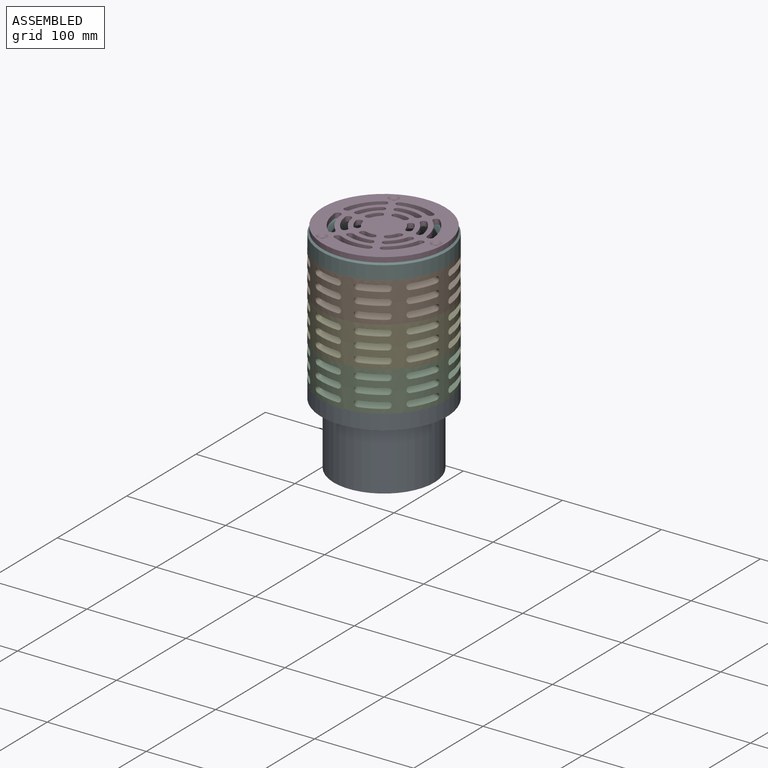
[diagram: assembled view]
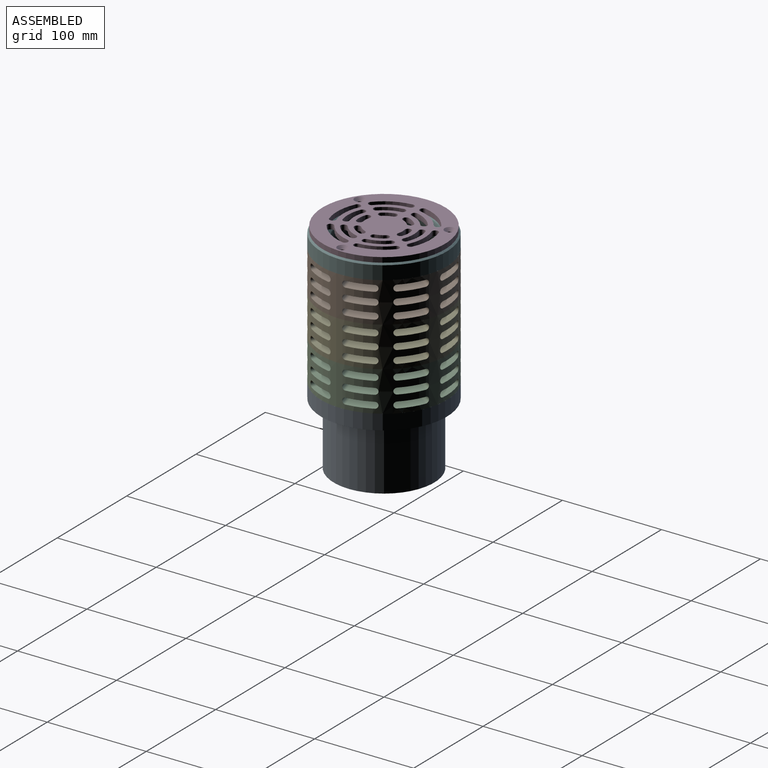
[diagram: assembled view, second angle]
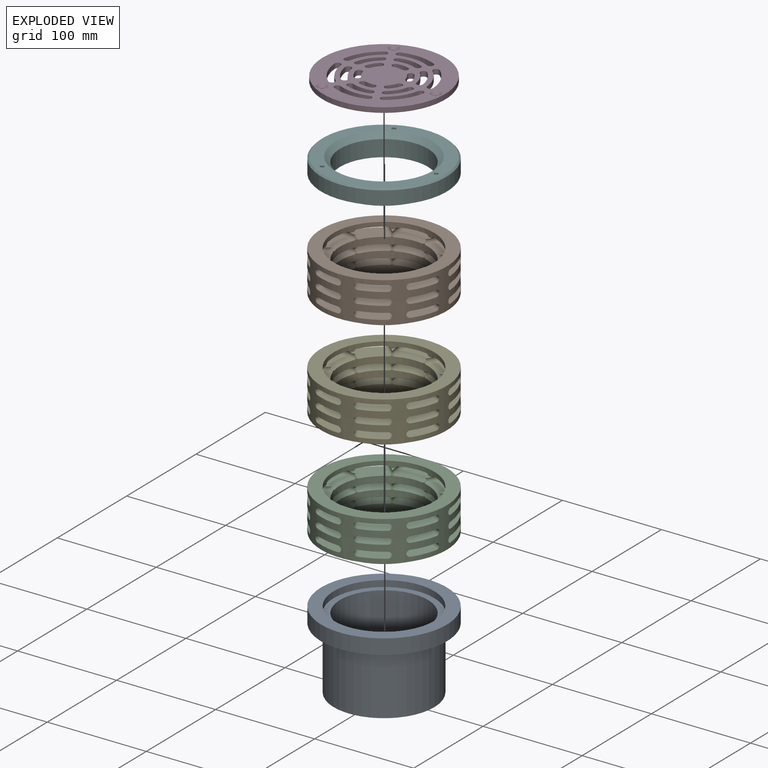
[diagram: exploded view]
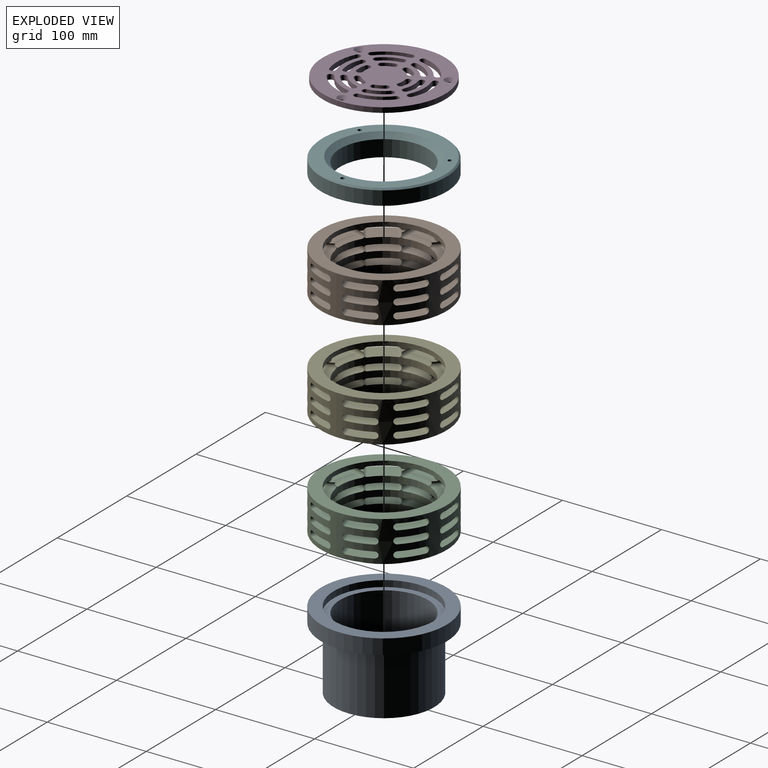
[diagram: exploded view, second angle]
ASSEMBLY  parts=6 mates=5
PART A: 8 faces, bbox 127x127x78.7 mm
  f0: cylinder r=44.45mm len=88.9mm, axis (0,0,-1), area 20217.6mm2, adj f4,f7
  f1: cylinder r=63.5mm len=127mm, axis (0,0,-1), area 6080.5mm2, adj f2,f5
  f2: plane 127x127mm, normal (0,0,-1), area 4560.4mm2, adj f1,f3
  f3: cylinder r=50.8mm len=101.6mm, axis (0,0,1), area 20268.3mm2, adj f2,f4
  f4: plane 101.6x101.6mm, normal (0,0,-1), area 1900.2mm2, adj f0,f3
  f5: plane 127x127mm, normal (0,0,1), area 4560.4mm2, adj f1,f6
  f6: cylinder r=50.8mm len=101.6mm, axis (0,0,1), area 2026.8mm2, adj f5,f7
  f7: plane 101.6x101.6mm, normal (0,0,1), area 1900.2mm2, adj f0,f6
PART B: 126 faces, bbox 128.1x127.4x47 mm
  f0: cylinder r=44.45mm len=88.9mm, axis (0,0,-1), area 1808.7mm2, adj f7,f9,f10,f12,f14,f16,f18,f20
  f1: cylinder r=44.45mm len=88.9mm, axis (0,0,-1), area 1808.7mm2, adj f8,f9,f10,f11,f15,f16,f18,f19
  f2: cylinder r=44.45mm len=88.9mm, axis (0,0,-1), area 3032.5mm2, adj f8,f11,f15,f19,f23,f27,f31,f35
  f3: cylinder r=63.5mm len=127mm, axis (0,0,-1), area 10953.1mm2, adj f7,f8,f9,f10,f11,f12,f14,f15
  f4: cylinder r=50.8mm len=101.6mm, axis (0,0,1), area 1511.9mm2, adj f5,f6,f7,f12,f13,f14,f17,f20
  f5: plane 5.45x3.51mm, normal (0,0,1), area 9.6mm2, adj f4,f7,f116
  f6: plane 5.37x4.18mm, normal (0,0,1), area 9.6mm2, adj f4,f12,f117
  f7: cylinder r=3.17mm len=20.45mm, axis (0,1,0), area 168mm2, adj f0,f3,f4,f5,f45,f46,f116
  f8: cylinder r=3.17mm len=20.45mm, axis (0,1,0), area 191.9mm2, adj f1,f2,f3,f47,f48,f120
  f9: cylinder r=3.17mm len=20.45mm, axis (0,1,0), area 191.9mm2, adj f0,f1,f3,f49,f50,f124
  f10: cylinder r=3.17mm len=20.69mm, axis (-0.98,0.17,0), area 191.9mm2, adj f0,f1,f3,f105,f106,f125
  f11: cylinder r=3.17mm len=20.69mm, axis (-0.98,0.17,0), area 191.9mm2, adj f1,f2,f3,f108,f109,f121
  f12: cylinder r=3.17mm len=20.69mm, axis (-0.98,0.17,0), area 168mm2, adj f0,f3,f4,f6,f111,f112,f117
  f13: plane 5.37x3.67mm, normal (0,0,1), area 9.6mm2, adj f4,f14,f113
  f14: cylinder r=3.17mm len=19.3mm, axis (-0.87,-0.5,0), area 168mm2, adj f0,f3,f4,f13,f96,f97,f113
  f15: cylinder r=3.17mm len=19.3mm, axis (-0.87,-0.5,0), area 191.9mm2, adj f1,f2,f3,f99,f100,f110
  f16: cylinder r=3.17mm len=19.3mm, axis (-0.87,-0.5,0), area 191.9mm2, adj f0,f1,f3,f102,f103,f107
  f17: plane 5.13x4.72mm, normal (0,0,1), area 9.6mm2, adj f4,f20,f98
  f18: cylinder r=3.17mm len=20.3mm, axis (-0.34,-0.94,0), area 191.9mm2, adj f0,f1,f3,f87,f88,f104
  f19: cylinder r=3.17mm len=20.3mm, axis (-0.34,-0.94,0), area 191.9mm2, adj f1,f2,f3,f90,f91,f101
  f20: cylinder r=3.17mm len=20.3mm, axis (-0.34,-0.94,0), area 168mm2, adj f0,f3,f4,f17,f93,f94,f98
  f21: plane 5.16x3.73mm, normal (0,0,1), area 9.6mm2, adj f4,f22,f95
  f22: cylinder r=3.17mm len=20.3mm, axis (0.34,-0.94,0), area 168mm2, adj f0,f3,f4,f21,f78,f79,f95
  f23: cylinder r=3.17mm len=20.3mm, axis (0.34,-0.94,0), area 191.9mm2, adj f1,f2,f3,f81,f82,f92
  f24: cylinder r=3.17mm len=20.3mm, axis (0.34,-0.94,0), area 191.9mm2, adj f0,f1,f3,f84,f85,f89
  f25: plane 5.13x4.72mm, normal (0,0,1), area 9.6mm2, adj f4,f28,f80
  f26: cylinder r=3.17mm len=19.3mm, axis (0.87,-0.5,0), area 191.9mm2, adj f0,f1,f3,f69,f70,f86
  f27: cylinder r=3.17mm len=19.3mm, axis (0.87,-0.5,0), area 191.9mm2, adj f1,f2,f3,f72,f73,f83
  f28: cylinder r=3.17mm len=19.3mm, axis (0.87,-0.5,0), area 168mm2, adj f0,f3,f4,f25,f75,f76,f80
  f29: plane 5.37x3.67mm, normal (0,0,1), area 9.6mm2, adj f4,f30,f77
  f30: cylinder r=3.17mm len=20.69mm, axis (0.98,0.17,0), area 168mm2, adj f0,f3,f4,f29,f60,f61,f77
  f31: cylinder r=3.17mm len=20.69mm, axis (0.98,0.17,0), area 191.9mm2, adj f1,f2,f3,f63,f64,f74
  f32: cylinder r=3.17mm len=20.69mm, axis (0.98,0.17,0), area 191.9mm2, adj f0,f1,f3,f66,f67,f71
  f33: plane 5.37x4.18mm, normal (0,0,1), area 9.6mm2, adj f4,f36,f62
  f34: cylinder r=3.17mm len=17.7mm, axis (0.64,0.77,0), area 191.9mm2, adj f0,f1,f3,f51,f52,f68
  f35: cylinder r=3.17mm len=17.7mm, axis (0.64,0.77,0), area 191.9mm2, adj f1,f2,f3,f54,f55,f65
  f36: cylinder r=3.17mm len=17.7mm, axis (0.64,0.77,0), area 168mm2, adj f0,f3,f4,f33,f57,f58,f62
  f37: plane 5.45x3.51mm, normal (0,0,1), area 9.6mm2, adj f4,f38,f59
  f38: cylinder r=3.17mm len=20.45mm, axis (0,1,0), area 168mm2, adj f0,f3,f4,f37,f45,f46,f59
  f39: cylinder r=3.17mm len=20.45mm, axis (0,1,0), area 191.9mm2, adj f1,f2,f3,f47,f48,f56
  f40: cylinder r=3.17mm len=20.45mm, axis (0,1,0), area 191.9mm2, adj f0,f1,f3,f49,f50,f53
  f41: plane 127x127mm, normal (0,0,1), area 4560.4mm2, adj f3,f4
  f42: plane 127x127mm, normal (0,0,-1), area 4560.4mm2, adj f3,f43
  f43: cylinder r=50.8mm len=101.6mm, axis (0,0,1), area 2026.8mm2, adj f42,f44
  f44: plane 101.6x101.6mm, normal (0,0,-1), area 1900.2mm2, adj f2,f43
  f45: plane 25.4x20.9mm, normal (0,0,1), area 488.6mm2, adj f0,f3,f7,f38
  f46: plane 25.4x14.31mm, normal (0,0,-1), area 325.3mm2, adj f3,f4,f7,f38
  f47: plane 25.4x20.9mm, normal (0,0,1), area 488.6mm2, adj f2,f3,f8,f39
  f48: plane 25.4x20.9mm, normal (0,0,-1), area 488.6mm2, adj f1,f3,f8,f39
  f49: plane 25.4x20.9mm, normal (0,0,1), area 488.6mm2, adj f1,f3,f9,f40
  f50: plane 25.4x20.9mm, normal (0,0,-1), area 488.6mm2, adj f0,f3,f9,f40
  f51: plane 32.07x31.36mm, normal (0,0,1), area 488.6mm2, adj f1,f3,f34,f53
  f52: plane 32.07x31.36mm, normal (0,0,-1), area 488.6mm2, adj f0,f3,f34,f53
  f53: cylinder r=3.17mm len=17.7mm, axis (0.64,0.77,0), area 191.9mm2, adj f0,f1,f3,f40,f51,f52
  f54: plane 32.07x31.36mm, normal (0,0,1), area 488.6mm2, adj f2,f3,f35,f56
  f55: plane 32.07x31.36mm, normal (0,0,-1), area 488.6mm2, adj f1,f3,f35,f56
  f56: cylinder r=3.17mm len=17.7mm, axis (0.64,0.77,0), area 191.9mm2, adj f1,f2,f3,f39,f54,f55
  f57: plane 32.07x31.36mm, normal (0,0,1), area 488.6mm2, adj f0,f3,f36,f59
  f58: plane 27.83x26.31mm, normal (0,0,-1), area 325.3mm2, adj f3,f4,f36,f59
  f59: cylinder r=3.17mm len=17.7mm, axis (0.64,0.77,0), area 168mm2, adj f0,f3,f4,f37,f38,f57,f58
  f60: plane 28.42x23.76mm, normal (0,0,1), area 488.6mm2, adj f0,f3,f30,f62
  f61: plane 27.28x17.27mm, normal (0,0,-1), area 325.3mm2, adj f3,f4,f30,f62
  f62: cylinder r=3.17mm len=20.69mm, axis (0.98,0.17,0), area 168mm2, adj f0,f3,f4,f33,f36,f60,f61
  f63: plane 28.42x23.76mm, normal (0,0,1), area 488.6mm2, adj f2,f3,f31,f65
  f64: plane 28.42x23.76mm, normal (0,0,-1), area 488.6mm2, adj f1,f3,f31,f65
  f65: cylinder r=3.17mm len=20.69mm, axis (0.98,0.17,0), area 191.9mm2, adj f1,f2,f3,f35,f63,f64
  f66: plane 28.42x23.76mm, normal (0,0,1), area 488.6mm2, adj f1,f3,f32,f68
  f67: plane 28.42x23.76mm, normal (0,0,-1), area 488.6mm2, adj f0,f3,f32,f68
  f68: cylinder r=3.17mm len=20.69mm, axis (0.98,0.17,0), area 191.9mm2, adj f0,f1,f3,f34,f66,f67
  f69: plane 31.81x29.69mm, normal (0,0,1), area 488.6mm2, adj f1,f3,f26,f71
  f70: plane 31.81x29.69mm, normal (0,0,-1), area 488.6mm2, adj f0,f3,f26,f71
  f71: cylinder r=3.17mm len=19.3mm, axis (0.87,-0.5,0), area 191.9mm2, adj f0,f1,f3,f32,f69,f70
  f72: plane 31.81x29.69mm, normal (0,0,1), area 488.6mm2, adj f2,f3,f27,f74
  f73: plane 31.81x29.69mm, normal (0,0,-1), area 488.6mm2, adj f1,f3,f27,f74
  f74: cylinder r=3.17mm len=19.3mm, axis (0.87,-0.5,0), area 191.9mm2, adj f1,f2,f3,f31,f72,f73
  f75: plane 31.81x29.69mm, normal (0,0,1), area 488.6mm2, adj f0,f3,f28,f77
  f76: plane 28.51x23.98mm, normal (0,0,-1), area 325.3mm2, adj f3,f4,f28,f77
  f77: cylinder r=3.17mm len=19.3mm, axis (0.87,-0.5,0), area 168mm2, adj f0,f3,f4,f29,f30,f75,f76
  f78: plane 30.58x27.12mm, normal (0,0,1), area 488.6mm2, adj f0,f3,f22,f80
  f79: plane 28.32x20.93mm, normal (0,0,-1), area 325.3mm2, adj f3,f4,f22,f80
  f80: cylinder r=3.17mm len=20.3mm, axis (0.34,-0.94,0), area 168mm2, adj f0,f3,f4,f25,f28,f78,f79
  f81: plane 30.58x27.12mm, normal (0,0,1), area 488.6mm2, adj f2,f3,f23,f83
  f82: plane 30.58x27.12mm, normal (0,0,-1), area 488.6mm2, adj f1,f3,f23,f83
  f83: cylinder r=3.17mm len=20.3mm, axis (0.34,-0.94,0), area 191.9mm2, adj f1,f2,f3,f27,f81,f82
  f84: plane 30.58x27.12mm, normal (0,0,1), area 488.6mm2, adj f1,f3,f24,f86
  f85: plane 30.58x27.12mm, normal (0,0,-1), area 488.6mm2, adj f0,f3,f24,f86
  f86: cylinder r=3.17mm len=20.3mm, axis (0.34,-0.94,0), area 191.9mm2, adj f0,f1,f3,f26,f84,f85
  f87: plane 30.58x27.12mm, normal (0,0,1), area 488.6mm2, adj f1,f3,f18,f89
  f88: plane 30.58x27.12mm, normal (0,0,-1), area 488.6mm2, adj f0,f3,f18,f89
  f89: cylinder r=3.17mm len=20.3mm, axis (-0.34,-0.94,0), area 191.9mm2, adj f0,f1,f3,f24,f87,f88
  f90: plane 30.58x27.12mm, normal (0,0,1), area 488.6mm2, adj f2,f3,f19,f92
  f91: plane 30.58x27.12mm, normal (0,0,-1), area 488.6mm2, adj f1,f3,f19,f92
  f92: cylinder r=3.17mm len=20.3mm, axis (-0.34,-0.94,0), area 191.9mm2, adj f1,f2,f3,f23,f90,f91
  f93: plane 30.58x27.12mm, normal (0,0,1), area 488.6mm2, adj f0,f3,f20,f95
  f94: plane 28.32x20.93mm, normal (0,0,-1), area 325.3mm2, adj f3,f4,f20,f95
  f95: cylinder r=3.17mm len=20.3mm, axis (-0.34,-0.94,0), area 168mm2, adj f0,f3,f4,f21,f22,f93,f94
  f96: plane 31.81x29.69mm, normal (0,0,1), area 488.6mm2, adj f0,f3,f14,f98
  f97: plane 28.51x23.98mm, normal (0,0,-1), area 325.3mm2, adj f3,f4,f14,f98
  f98: cylinder r=3.17mm len=19.3mm, axis (-0.87,-0.5,0), area 168mm2, adj f0,f3,f4,f17,f20,f96,f97
  f99: plane 31.81x29.69mm, normal (0,0,1), area 488.6mm2, adj f2,f3,f15,f101
  f100: plane 31.81x29.69mm, normal (0,0,-1), area 488.6mm2, adj f1,f3,f15,f101
  f101: cylinder r=3.17mm len=19.3mm, axis (-0.87,-0.5,0), area 191.9mm2, adj f1,f2,f3,f19,f99,f100
  f102: plane 31.81x29.69mm, normal (0,0,1), area 488.6mm2, adj f1,f3,f16,f104
  f103: plane 31.81x29.69mm, normal (0,0,-1), area 488.6mm2, adj f0,f3,f16,f104
  f104: cylinder r=3.17mm len=19.3mm, axis (-0.87,-0.5,0), area 191.9mm2, adj f0,f1,f3,f18,f102,f103
  f105: plane 28.42x23.76mm, normal (0,0,1), area 488.6mm2, adj f1,f3,f10,f107
  f106: plane 28.42x23.76mm, normal (0,0,-1), area 488.6mm2, adj f0,f3,f10,f107
  f107: cylinder r=3.17mm len=20.69mm, axis (-0.98,0.17,0), area 191.9mm2, adj f0,f1,f3,f16,f105,f106
  f108: plane 28.42x23.76mm, normal (0,0,1), area 488.6mm2, adj f2,f3,f11,f110
  f109: plane 28.42x23.76mm, normal (0,0,-1), area 488.6mm2, adj f1,f3,f11,f110
  f110: cylinder r=3.17mm len=20.69mm, axis (-0.98,0.17,0), area 191.9mm2, adj f1,f2,f3,f15,f108,f109
  f111: plane 28.42x23.76mm, normal (0,0,1), area 488.6mm2, adj f0,f3,f12,f113
  f112: plane 27.28x17.27mm, normal (0,0,-1), area 325.3mm2, adj f3,f4,f12,f113
  f113: cylinder r=3.17mm len=20.69mm, axis (-0.98,0.17,0), area 168mm2, adj f0,f3,f4,f13,f14,f111,f112
  f114: plane 32.07x31.36mm, normal (0,0,1), area 488.6mm2, adj f0,f3,f116,f117
  f115: plane 27.83x26.31mm, normal (0,0,-1), area 325.3mm2, adj f3,f4,f116,f117
  f116: cylinder r=3.17mm len=17.7mm, axis (-0.64,0.77,0), area 168mm2, adj f0,f3,f4,f5,f7,f114,f115
  f117: cylinder r=3.17mm len=17.7mm, axis (-0.64,0.77,0), area 168mm2, adj f0,f3,f4,f6,f12,f114,f115
  f118: plane 32.07x31.36mm, normal (0,0,1), area 488.6mm2, adj f2,f3,f120,f121
  f119: plane 32.07x31.36mm, normal (0,0,-1), area 488.6mm2, adj f1,f3,f120,f121
  f120: cylinder r=3.17mm len=17.7mm, axis (-0.64,0.77,0), area 191.9mm2, adj f1,f2,f3,f8,f118,f119
  f121: cylinder r=3.17mm len=17.7mm, axis (-0.64,0.77,0), area 191.9mm2, adj f1,f2,f3,f11,f118,f119
  f122: plane 32.07x31.36mm, normal (0,0,1), area 488.6mm2, adj f1,f3,f124,f125
  f123: plane 32.07x31.36mm, normal (0,0,-1), area 488.6mm2, adj f0,f3,f124,f125
  f124: cylinder r=3.17mm len=17.7mm, axis (-0.64,0.77,0), area 191.9mm2, adj f0,f1,f3,f9,f122,f123
  f125: cylinder r=3.17mm len=17.7mm, axis (-0.64,0.77,0), area 191.9mm2, adj f0,f1,f3,f10,f122,f123
PART C: same geometry as B
PART D: 117 faces, bbox 123.8x123.8x5.1 mm
  f0: plane 123.83x123.83mm, normal (0,0,1), area 8715.9mm2, adj f2,f4,f6,f8,f9,f10,f11,f12
  f1: plane 123.83x123.83mm, normal (0,0,-1), area 8911.2mm2, adj f2,f3,f5,f7,f9,f10,f11,f12
  f2: cylinder r=61.91mm len=123.83mm, axis (0,0,-1), area 1976.2mm2, adj f0,f1
  f3: cylinder r=2.55mm len=5.11mm, axis (0,0,1), area 32.3mm2, adj f1,f4
  f4: cone r=2.55mm half-angle=41deg, axis (0,0,1), area 99.3mm2, adj f0,f3
  f5: cylinder r=2.55mm len=5.11mm, axis (0,0,1), area 32.3mm2, adj f1,f6
  f6: cone r=2.55mm half-angle=41deg, axis (0,0,1), area 99.3mm2, adj f0,f5
  f7: cylinder r=2.55mm len=5.11mm, axis (0,0,1), area 32.3mm2, adj f1,f8
  f8: cone r=2.55mm half-angle=41deg, axis (0,0,1), area 99.3mm2, adj f0,f7
  f9: cylinder r=41.13mm len=26.41mm, axis (0,0,1), area 158.7mm2, adj f0,f1,f24,f25
  f10: cylinder r=47.46mm len=30.47mm, axis (0,0,1), area 183.1mm2, adj f0,f1,f23,f26
  f11: cylinder r=19.05mm len=7.65mm, axis (0,0,1), area 45.3mm2, adj f0,f1,f16,f17
  f12: cylinder r=25.33mm len=10.13mm, axis (0,0,1), area 60mm2, adj f0,f1,f15,f18
  f13: cylinder r=30.06mm len=16.94mm, axis (0,0,1), area 101.2mm2, adj f0,f1,f20,f21
  f14: cylinder r=36.38mm len=20.49mm, axis (0,0,1), area 122.4mm2, adj f0,f1,f19,f22
  f15: cylinder r=3.17mm len=5.08mm, axis (0,0,1), area 29.8mm2, adj f0,f1,f12,f16
  f16: cylinder r=3.17mm len=5.08mm, axis (0,0,1), area 20.5mm2, adj f0,f1,f11,f15
  f17: cylinder r=3.17mm len=5.08mm, axis (0,0,1), area 20.5mm2, adj f0,f1,f11,f18
  f18: cylinder r=3.17mm len=5.08mm, axis (0,0,1), area 29.8mm2, adj f0,f1,f12,f17
  f19: cylinder r=3.17mm len=5.08mm, axis (0,0,1), area 28.4mm2, adj f0,f1,f14,f20
  f20: cylinder r=3.17mm len=5.08mm, axis (0,0,1), area 22.2mm2, adj f0,f1,f13,f19
  f21: cylinder r=3.17mm len=5.08mm, axis (0,0,1), area 22.2mm2, adj f0,f1,f13,f22
  f22: cylinder r=3.17mm len=5.08mm, axis (0,0,1), area 28.4mm2, adj f0,f1,f14,f21
  f23: cylinder r=3.17mm len=5.08mm, axis (0,0,1), area 27.6mm2, adj f0,f1,f10,f24
  f24: cylinder r=3.17mm len=5.08mm, axis (0,0,1), area 23mm2, adj f0,f1,f9,f23
  f25: cylinder r=3.17mm len=5.08mm, axis (0,0,1), area 23mm2, adj f0,f1,f9,f26
  f26: cylinder r=3.17mm len=5.08mm, axis (0,0,1), area 27.6mm2, adj f0,f1,f10,f25
  f27: cylinder r=19.05mm len=8.83mm, axis (0,0,1), area 45.3mm2, adj f0,f1,f34,f35
  f28: cylinder r=25.33mm len=11.7mm, axis (0,0,1), area 60mm2, adj f0,f1,f33,f36
  f29: cylinder r=30.06mm len=19.56mm, axis (0,0,1), area 101.2mm2, adj f0,f1,f38,f39
  f30: cylinder r=36.38mm len=23.66mm, axis (0,0,1), area 122.4mm2, adj f0,f1,f37,f40
  f31: cylinder r=41.13mm len=30.5mm, axis (0,0,1), area 158.7mm2, adj f0,f1,f42,f43
  f32: cylinder r=47.46mm len=35.19mm, axis (0,0,1), area 183.1mm2, adj f0,f1,f41,f44
  f33: cylinder r=3.17mm len=5.08mm, axis (0,0,1), area 29.8mm2, adj f0,f1,f28,f34
  f34: cylinder r=3.17mm len=5.08mm, axis (0,0,1), area 20.5mm2, adj f0,f1,f27,f33
  f35: cylinder r=3.17mm len=5.08mm, axis (0,0,1), area 20.5mm2, adj f0,f1,f27,f36
  f36: cylinder r=3.17mm len=5.08mm, axis (0,0,1), area 29.8mm2, adj f0,f1,f28,f35
  f37: cylinder r=3.17mm len=5.08mm, axis (0,0,1), area 28.4mm2, adj f0,f1,f30,f38
  f38: cylinder r=3.17mm len=5.08mm, axis (0,0,1), area 22.2mm2, adj f0,f1,f29,f37
  f39: cylinder r=3.17mm len=5.08mm, axis (0,0,1), area 22.2mm2, adj f0,f1,f29,f40
  f40: cylinder r=3.17mm len=5.08mm, axis (0,0,1), area 28.4mm2, adj f0,f1,f30,f39
  f41: cylinder r=3.17mm len=5.08mm, axis (0,0,1), area 27.6mm2, adj f0,f1,f32,f42
  f42: cylinder r=3.17mm len=5.08mm, axis (0,0,1), area 23mm2, adj f0,f1,f31,f41
  f43: cylinder r=3.17mm len=5.08mm, axis (0,0,1), area 23mm2, adj f0,f1,f31,f44
  f44: cylinder r=3.17mm len=5.08mm, axis (0,0,1), area 27.6mm2, adj f0,f1,f32,f43
  f45: cylinder r=41.13mm len=26.41mm, axis (0,0,1), area 158.7mm2, adj f0,f1,f60,f61
  f46: cylinder r=47.46mm len=30.47mm, axis (0,0,1), area 183.1mm2, adj f0,f1,f59,f62
  f47: cylinder r=19.05mm len=7.65mm, axis (0,0,1), area 45.3mm2, adj f0,f1,f52,f53
  f48: cylinder r=25.33mm len=10.13mm, axis (0,0,1), area 60mm2, adj f0,f1,f51,f54
  f49: cylinder r=30.06mm len=16.94mm, axis (0,0,1), area 101.2mm2, adj f0,f1,f56,f57
  f50: cylinder r=36.38mm len=20.49mm, axis (0,0,1), area 122.4mm2, adj f0,f1,f55,f58
  f51: cylinder r=3.17mm len=5.08mm, axis (0,0,1), area 29.8mm2, adj f0,f1,f48,f52
  f52: cylinder r=3.17mm len=5.08mm, axis (0,0,1), area 20.5mm2, adj f0,f1,f47,f51
  f53: cylinder r=3.17mm len=5.08mm, axis (0,0,1), area 20.5mm2, adj f0,f1,f47,f54
  f54: cylinder r=3.17mm len=5.08mm, axis (0,0,1), area 29.8mm2, adj f0,f1,f48,f53
  f55: cylinder r=3.17mm len=5.08mm, axis (0,0,1), area 28.4mm2, adj f0,f1,f50,f56
  f56: cylinder r=3.17mm len=5.08mm, axis (0,0,1), area 22.2mm2, adj f0,f1,f49,f55
  f57: cylinder r=3.17mm len=5.08mm, axis (0,0,1), area 22.2mm2, adj f0,f1,f49,f58
  f58: cylinder r=3.17mm len=5.08mm, axis (0,0,1), area 28.4mm2, adj f0,f1,f50,f57
  f59: cylinder r=3.17mm len=5.08mm, axis (0,0,1), area 27.6mm2, adj f0,f1,f46,f60
  f60: cylinder r=3.17mm len=5.08mm, axis (0,0,1), area 23mm2, adj f0,f1,f45,f59
  f61: cylinder r=3.17mm len=5.08mm, axis (0,0,1), area 23mm2, adj f0,f1,f45,f62
  f62: cylinder r=3.17mm len=5.08mm, axis (0,0,1), area 27.6mm2, adj f0,f1,f46,f61
  f63: cylinder r=41.13mm len=26.41mm, axis (0,0,1), area 158.7mm2, adj f0,f1,f78,f79
  f64: cylinder r=47.46mm len=30.47mm, axis (0,0,1), area 183.1mm2, adj f0,f1,f77,f80
  f65: cylinder r=19.05mm len=7.65mm, axis (0,0,1), area 45.3mm2, adj f0,f1,f70,f71
  f66: cylinder r=25.33mm len=10.13mm, axis (0,0,1), area 60mm2, adj f0,f1,f69,f72
  f67: cylinder r=30.06mm len=16.94mm, axis (0,0,1), area 101.2mm2, adj f0,f1,f74,f75
  f68: cylinder r=36.38mm len=20.49mm, axis (0,0,1), area 122.4mm2, adj f0,f1,f73,f76
  f69: cylinder r=3.17mm len=5.08mm, axis (0,0,1), area 29.8mm2, adj f0,f1,f66,f70
  f70: cylinder r=3.17mm len=5.08mm, axis (0,0,1), area 20.5mm2, adj f0,f1,f65,f69
  f71: cylinder r=3.17mm len=5.08mm, axis (0,0,1), area 20.5mm2, adj f0,f1,f65,f72
  f72: cylinder r=3.17mm len=5.08mm, axis (0,0,1), area 29.8mm2, adj f0,f1,f66,f71
  f73: cylinder r=3.17mm len=5.08mm, axis (0,0,1), area 28.4mm2, adj f0,f1,f68,f74
  f74: cylinder r=3.17mm len=5.08mm, axis (0,0,1), area 22.2mm2, adj f0,f1,f67,f73
  f75: cylinder r=3.17mm len=5.08mm, axis (0,0,1), area 22.2mm2, adj f0,f1,f67,f76
  f76: cylinder r=3.17mm len=5.08mm, axis (0,0,1), area 28.4mm2, adj f0,f1,f68,f75
  f77: cylinder r=3.17mm len=5.08mm, axis (0,0,1), area 27.6mm2, adj f0,f1,f64,f78
  f78: cylinder r=3.17mm len=5.08mm, axis (0,0,1), area 23mm2, adj f0,f1,f63,f77
  f79: cylinder r=3.17mm len=5.08mm, axis (0,0,1), area 23mm2, adj f0,f1,f63,f80
  f80: cylinder r=3.17mm len=5.08mm, axis (0,0,1), area 27.6mm2, adj f0,f1,f64,f79
  f81: cylinder r=19.05mm len=8.83mm, axis (0,0,1), area 45.3mm2, adj f0,f1,f88,f89
  f82: cylinder r=25.33mm len=11.7mm, axis (0,0,1), area 60mm2, adj f0,f1,f87,f90
  f83: cylinder r=30.06mm len=19.56mm, axis (0,0,1), area 101.2mm2, adj f0,f1,f92,f93
  f84: cylinder r=36.38mm len=23.66mm, axis (0,0,1), area 122.4mm2, adj f0,f1,f91,f94
  f85: cylinder r=41.13mm len=30.5mm, axis (0,0,1), area 158.7mm2, adj f0,f1,f96,f97
  f86: cylinder r=47.46mm len=35.19mm, axis (0,0,1), area 183.1mm2, adj f0,f1,f95,f98
  f87: cylinder r=3.17mm len=5.08mm, axis (0,0,1), area 29.8mm2, adj f0,f1,f82,f88
  f88: cylinder r=3.17mm len=5.08mm, axis (0,0,1), area 20.5mm2, adj f0,f1,f81,f87
  f89: cylinder r=3.17mm len=5.08mm, axis (0,0,1), area 20.5mm2, adj f0,f1,f81,f90
  f90: cylinder r=3.17mm len=5.08mm, axis (0,0,1), area 29.8mm2, adj f0,f1,f82,f89
  f91: cylinder r=3.17mm len=5.08mm, axis (0,0,1), area 28.4mm2, adj f0,f1,f84,f92
  f92: cylinder r=3.17mm len=5.08mm, axis (0,0,1), area 22.2mm2, adj f0,f1,f83,f91
  f93: cylinder r=3.17mm len=5.08mm, axis (0,0,1), area 22.2mm2, adj f0,f1,f83,f94
  f94: cylinder r=3.17mm len=5.08mm, axis (0,0,1), area 28.4mm2, adj f0,f1,f84,f93
  f95: cylinder r=3.17mm len=5.08mm, axis (0,0,1), area 27.6mm2, adj f0,f1,f86,f96
  f96: cylinder r=3.17mm len=5.08mm, axis (0,0,1), area 23mm2, adj f0,f1,f85,f95
  f97: cylinder r=3.17mm len=5.08mm, axis (0,0,1), area 23mm2, adj f0,f1,f85,f98
  f98: cylinder r=3.17mm len=5.08mm, axis (0,0,1), area 27.6mm2, adj f0,f1,f86,f97
  f99: cylinder r=41.13mm len=26.41mm, axis (0,0,1), area 158.7mm2, adj f0,f1,f114,f115
  f100: cylinder r=47.46mm len=30.47mm, axis (0,0,1), area 183.1mm2, adj f0,f1,f113,f116
  f101: cylinder r=19.05mm len=7.65mm, axis (0,0,1), area 45.3mm2, adj f0,f1,f106,f107
  f102: cylinder r=25.33mm len=10.13mm, axis (0,0,1), area 60mm2, adj f0,f1,f105,f108
  f103: cylinder r=30.06mm len=16.94mm, axis (0,0,1), area 101.2mm2, adj f0,f1,f110,f111
  f104: cylinder r=36.38mm len=20.49mm, axis (0,0,1), area 122.4mm2, adj f0,f1,f109,f112
  f105: cylinder r=3.17mm len=5.08mm, axis (0,0,1), area 29.8mm2, adj f0,f1,f102,f106
  f106: cylinder r=3.17mm len=5.08mm, axis (0,0,1), area 20.5mm2, adj f0,f1,f101,f105
  f107: cylinder r=3.17mm len=5.08mm, axis (0,0,1), area 20.5mm2, adj f0,f1,f101,f108
  f108: cylinder r=3.17mm len=5.08mm, axis (0,0,1), area 29.8mm2, adj f0,f1,f102,f107
  f109: cylinder r=3.17mm len=5.08mm, axis (0,0,1), area 28.4mm2, adj f0,f1,f104,f110
  f110: cylinder r=3.17mm len=5.08mm, axis (0,0,1), area 22.2mm2, adj f0,f1,f103,f109
  f111: cylinder r=3.17mm len=5.08mm, axis (0,0,1), area 22.2mm2, adj f0,f1,f103,f112
  f112: cylinder r=3.17mm len=5.08mm, axis (0,0,1), area 28.4mm2, adj f0,f1,f104,f111
  f113: cylinder r=3.17mm len=5.08mm, axis (0,0,1), area 27.6mm2, adj f0,f1,f100,f114
  f114: cylinder r=3.17mm len=5.08mm, axis (0,0,1), area 23mm2, adj f0,f1,f99,f113
  f115: cylinder r=3.17mm len=5.08mm, axis (0,0,1), area 23mm2, adj f0,f1,f99,f116
  f116: cylinder r=3.17mm len=5.08mm, axis (0,0,1), area 27.6mm2, adj f0,f1,f100,f115
PART E: same geometry as B
PART F: 14 faces, bbox 127x127x21.6 mm
  f0: cylinder r=63.5mm len=127mm, axis (0,0,-1), area 5447.1mm2, adj f10,f11
  f1: plane 123.83x123.83mm, normal (0,0,1), area 4296.8mm2, adj f3,f5,f7,f9,f10
  f2: cylinder r=44.45mm len=88.9mm, axis (0,0,-1), area 4611mm2, adj f9,f13
  f3: cylinder r=2.02mm len=6.35mm, axis (0,0,1), area 80.6mm2, adj f1,f4
  f4: cone r=0mm half-angle=59deg, axis (0,0,1), area 14.9mm2, adj f3
  f5: cylinder r=2.02mm len=6.35mm, axis (0,0,1), area 80.6mm2, adj f1,f6
  f6: cone r=0mm half-angle=59deg, axis (0,0,1), area 14.9mm2, adj f5
  f7: cylinder r=2.02mm len=6.35mm, axis (0,0,1), area 80.6mm2, adj f1,f8
  f8: cone r=0mm half-angle=59deg, axis (0,0,1), area 14.9mm2, adj f7
  f9: cone r=44.45mm half-angle=45deg, axis (0,0,1), area 2121.1mm2, adj f1,f2
  f10: cone r=61.91mm half-angle=45deg, axis (0,0,-1), area 884.5mm2, adj f0,f1
  f11: plane 127x127mm, normal (0,0,-1), area 4560.4mm2, adj f0,f12
  f12: cylinder r=50.8mm len=101.6mm, axis (0,0,1), area 2026.8mm2, adj f11,f13
  f13: plane 101.6x101.6mm, normal (0,0,-1), area 1900.2mm2, adj f2,f12
PLACE A rot(axis=(0,0,1),26.4deg) t=(0,0,63.5)mm
PLACE B rot(axis=(0,0,1),26.4deg) t=(0,0,144.78)mm
PLACE C rot(axis=(0,0,1),26.4deg) t=(0,0,63.5)mm
PLACE D rot(axis=(0,0,1),26.4deg) t=(0,0,144.78)mm
PLACE E rot(axis=(0,0,1),26.4deg) t=(0,0,104.14)mm
PLACE F rot(axis=(0,0,1),26.4deg) t=(0,0,144.78)mm
MATE fastened F.f0 <-> B.f0  axis (0,0,-1) through (0,0,200.66)mm
MATE fastened C.f0 <-> E.f0  axis (0,0,1) through (0,0,119.38)mm
MATE fastened A.f0 <-> C.f0  axis (0,0,1) through (0,0,78.74)mm
MATE fastened F.f0 <-> D.f2  axis (0,0,1) through (0,0,215.9)mm
MATE fastened B.f0 <-> E.f0  axis (0,0,-1) through (0,0,160.02)mm
